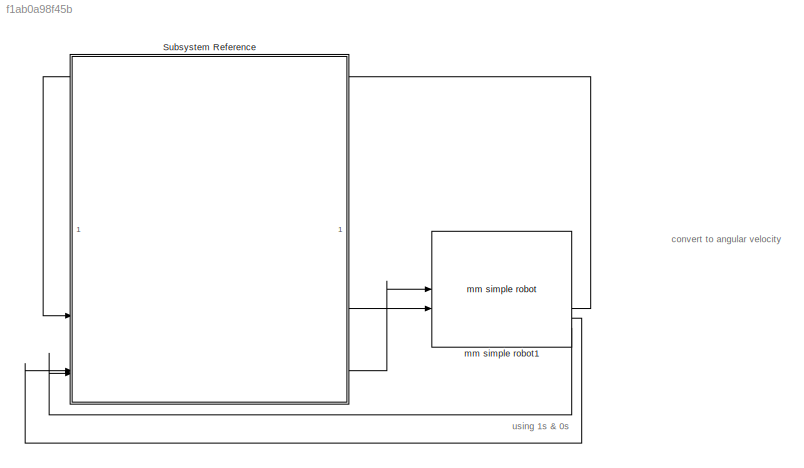
MODEL slx_f1ab0a98f45b
KIND model
CONFIG AbsTol = auto
CONFIG EnableMultiTasking = off
CONFIG FixedStep = auto
CONFIG MaxStep = auto
CONFIG MinStep = auto
CONFIG RelTol = 1e-3
CONFIG SampleTimeConstraint = Unconstrained
CONFIG SolverName = VariableStepAuto
CONFIG StartTime = 0.0
CONFIG StopTime = 10.0
BLOCK [SubSystem] Subsystem Reference
  ReferencedSubsystem = StudentTemplate_LNGLUL002_M1
BLOCK [Reference] mm simple robot1  REF=mmuct_lib/mm simple robot  (lib defined in slx_2620ace7ce61, slx_448e9b5fb939)
  SourceBlock = mmuct_lib/mm simple robot
ANNOTATION (root): convert to angular velocity
ANNOTATION (root): using 1s & 0s
LINE Subsystem Reference:10 -> mm simple robot1:1
LINE Subsystem Reference:9 -> mm simple robot1:2
LINE mm simple robot1:2 -> Subsystem Reference:3
LINE mm simple robot1:3 -> Subsystem Reference:10
LINE mm simple robot1:5 -> Subsystem Reference:11
